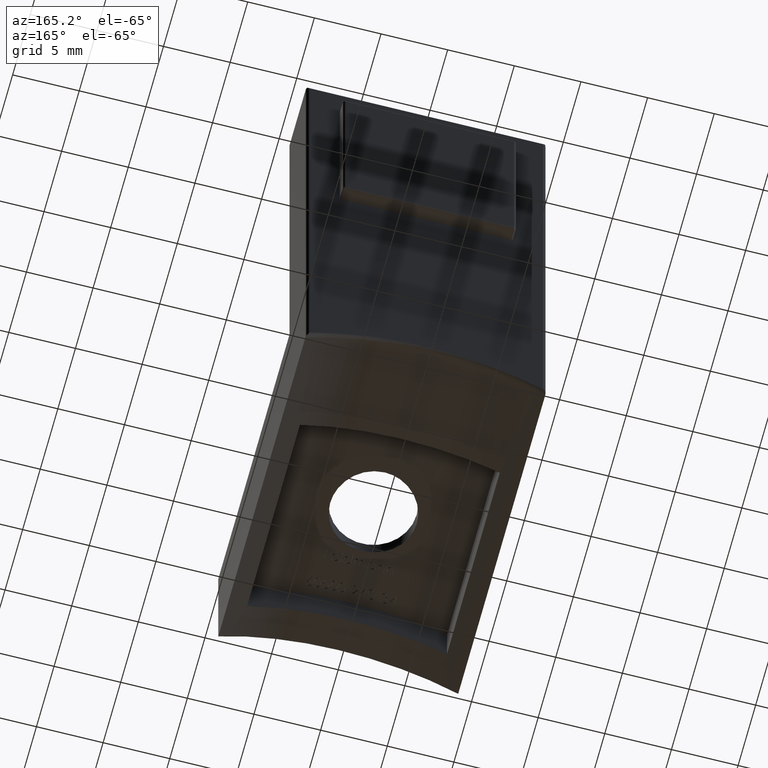
[diagram: clean part render]
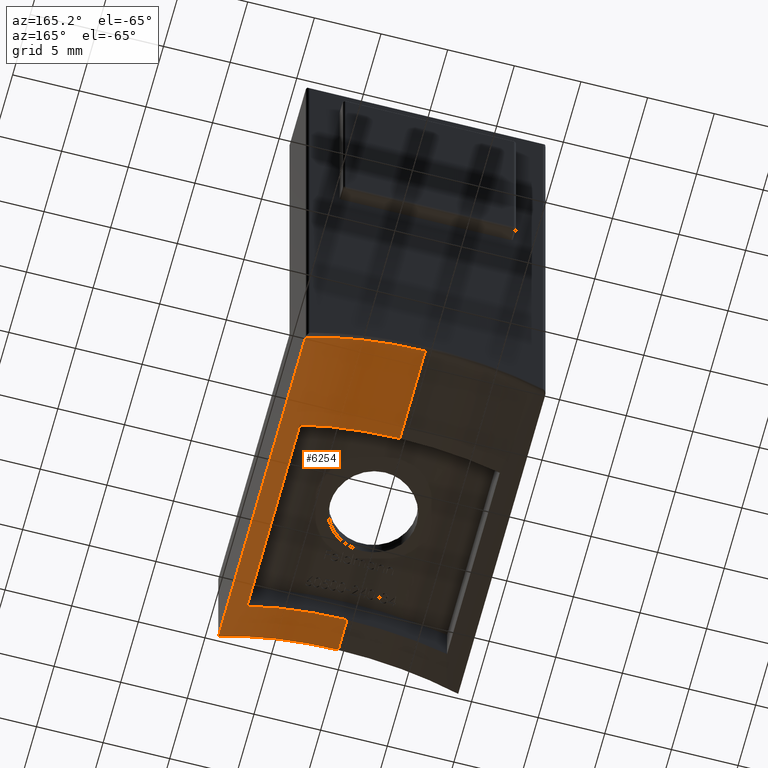
[diagram: same view with one face highlighted and labeled with its STEP entity id]
A machine part, auxiliary view. The second image highlights one B-rep face of the part: STEP entity #6254.
In plain terms, the highlighted cylindrical surface (partial cylindrical patch) has radius 16.85 mm, axis along (-0, 1, -0).
Its self-contained STEP definition (entity closure, byte-faithful):
#178 = VECTOR ( 'NONE', #6816, 1000.000000000000000 ) ;
#493 = CARTESIAN_POINT ( 'NONE',  ( 0.0000000000000000000, -0.2500000000000002200, -16.85000000000000100 ) ) ;
#955 = CARTESIAN_POINT ( 'NONE',  ( 0.0000000000000000000, -25.00000000000000000, 0.0000000000000000000 ) ) ;
#1081 = CARTESIAN_POINT ( 'NONE',  ( 0.0000000000000000000, -25.00000000000000000, -16.85000000000000100 ) ) ;
#1137 = CARTESIAN_POINT ( 'NONE',  ( 9.000000000000000000, -25.00000000000000000, -2.604913127678021300 ) ) ;
#1550 = EDGE_CURVE ( 'NONE', #6033, #10287, #14175, .T. ) ;
#1700 = EDGE_CURVE ( 'NONE', #3410, #6033, #1972, .T. ) ;
#1713 = VERTEX_POINT ( 'NONE', #3495 ) ;
#1807 = VECTOR ( 'NONE', #10134, 1000.000000000000000 ) ;
#1873 = DIRECTION ( 'NONE',  ( 0.0000000000000000000, 0.0000000000000000000, 1.000000000000000000 ) ) ;
#1972 = CIRCLE ( 'NONE', #5917, 16.85000000000000100 ) ;
#1985 = ORIENTED_EDGE ( 'NONE', *, *, #6970, .T. ) ;
#2459 = CARTESIAN_POINT ( 'NONE',  ( 0.0000000000000000000, -7.499999999999996400, -16.85000000000000100 ) ) ;
#2519 = DIRECTION ( 'NONE',  ( 0.0000000000000000000, 0.0000000000000000000, -1.000000000000000000 ) ) ;
#2615 = DIRECTION ( 'NONE',  ( -0.0000000000000000000, 1.000000000000000000, -0.0000000000000000000 ) ) ;
#2791 = EDGE_CURVE ( 'NONE', #6329, #10287, #10075, .T. ) ;
#2797 = ORIENTED_EDGE ( 'NONE', *, *, #2939, .T. ) ;
#2939 = EDGE_CURVE ( 'NONE', #9101, #3410, #12326, .T. ) ;
#3237 = CARTESIAN_POINT ( 'NONE',  ( 0.0000000000000000000, -0.2500000000000002200, 0.0000000000000000000 ) ) ;
#3241 = VERTEX_POINT ( 'NONE', #11389 ) ;
#3410 = VERTEX_POINT ( 'NONE', #9776 ) ;
#3495 = CARTESIAN_POINT ( 'NONE',  ( 9.000000000000000000, -25.00000000000000000, -2.604913127678021300 ) ) ;
#3527 = DIRECTION ( 'NONE',  ( 0.0000000000000000000, 0.0000000000000000000, -1.000000000000000000 ) ) ;
#3555 = EDGE_CURVE ( 'NONE', #9101, #1713, #13920, .T. ) ;
#3716 = CARTESIAN_POINT ( 'NONE',  ( 0.0000000000000000000, -25.00000000000000000, 0.0000000000000000000 ) ) ;
#4170 = AXIS2_PLACEMENT_3D ( 'NONE', #8564, #8603, #1873 ) ;
#4566 = CARTESIAN_POINT ( 'NONE',  ( 7.500000000000003600, -25.00000000000000000, -1.761179635239872800 ) ) ;
#5610 = DIRECTION ( 'NONE',  ( -0.0000000000000000000, 1.000000000000000000, -0.0000000000000000000 ) ) ;
#5917 = AXIS2_PLACEMENT_3D ( 'NONE', #5949, #12776, #2519 ) ;
#5929 = ORIENTED_EDGE ( 'NONE', *, *, #2791, .F. ) ;
#5949 = CARTESIAN_POINT ( 'NONE',  ( 0.0000000000000000000, -22.50000000000000000, -16.85000000000000100 ) ) ;
#6032 = FACE_OUTER_BOUND ( 'NONE', #10170, .T. ) ;
#6033 = VERTEX_POINT ( 'NONE', #10727 ) ;
#6042 = CARTESIAN_POINT ( 'NONE',  ( 0.0000000000000000000, -7.499999999999996400, 0.0000000000000000000 ) ) ;
#6233 = ORIENTED_EDGE ( 'NONE', *, *, #1550, .T. ) ;
#6254 = ADVANCED_FACE ( 'NONE', ( #6032 ), #10797, .F. ) ;
#6329 = VERTEX_POINT ( 'NONE', #6042 ) ;
#6620 = CIRCLE ( 'NONE', #12962, 16.85000000000000100 ) ;
#6816 = DIRECTION ( 'NONE',  ( -0.0000000000000000000, 1.000000000000000000, -0.0000000000000000000 ) ) ;
#6970 = EDGE_CURVE ( 'NONE', #6329, #14091, #10442, .T. ) ;
#7272 = DIRECTION ( 'NONE',  ( -0.0000000000000000000, 1.000000000000000000, -0.0000000000000000000 ) ) ;
#7347 = EDGE_CURVE ( 'NONE', #1713, #3241, #10610, .T. ) ;
#7475 = ORIENTED_EDGE ( 'NONE', *, *, #10822, .T. ) ;
#8029 = VECTOR ( 'NONE', #5610, 1000.000000000000000 ) ;
#8564 = CARTESIAN_POINT ( 'NONE',  ( 0.0000000000000000000, -25.00000000000000000, -16.85000000000000100 ) ) ;
#8603 = DIRECTION ( 'NONE',  ( -0.0000000000000000000, 1.000000000000000000, -0.0000000000000000000 ) ) ;
#8783 = DIRECTION ( 'NONE',  ( 0.0000000000000000000, 1.000000000000000000, 0.0000000000000000000 ) ) ;
#8854 = AXIS2_PLACEMENT_3D ( 'NONE', #2459, #13673, #3527 ) ;
#9005 = ORIENTED_EDGE ( 'NONE', *, *, #3555, .F. ) ;
#9101 = VERTEX_POINT ( 'NONE', #13111 ) ;
#9516 = AXIS2_PLACEMENT_3D ( 'NONE', #1081, #8783, #12223 ) ;
#9757 = ORIENTED_EDGE ( 'NONE', *, *, #7347, .F. ) ;
#9776 = CARTESIAN_POINT ( 'NONE',  ( 0.0000000000000000000, -22.50000000000000000, 0.0000000000000000000 ) ) ;
#10075 = CIRCLE ( 'NONE', #8854, 16.85000000000000100 ) ;
#10134 = DIRECTION ( 'NONE',  ( -0.0000000000000000000, 1.000000000000000000, -0.0000000000000000000 ) ) ;
#10170 = EDGE_LOOP ( 'NONE', ( #9005, #2797, #12449, #6233, #5929, #1985, #7475, #9757 ) ) ;
#10287 = VERTEX_POINT ( 'NONE', #11466 ) ;
#10442 = LINE ( 'NONE', #955, #1807 ) ;
#10610 = LINE ( 'NONE', #1137, #178 ) ;
#10727 = CARTESIAN_POINT ( 'NONE',  ( 7.500000000000003600, -22.50000000000000000, -1.761179635239869200 ) ) ;
#10797 = CYLINDRICAL_SURFACE ( 'NONE', #4170, 16.85000000000000100 ) ;
#10822 = EDGE_CURVE ( 'NONE', #14091, #3241, #6620, .T. ) ;
#11389 = CARTESIAN_POINT ( 'NONE',  ( 9.000000000000000000, -0.2500000000000002200, -2.604913127678021300 ) ) ;
#11466 = CARTESIAN_POINT ( 'NONE',  ( 7.500000000000005300, -7.499999999999996400, -1.761179635239874500 ) ) ;
#11605 = DIRECTION ( 'NONE',  ( 0.0000000000000000000, 0.0000000000000000000, -1.000000000000000000 ) ) ;
#12223 = DIRECTION ( 'NONE',  ( 0.0000000000000000000, 0.0000000000000000000, 1.000000000000000000 ) ) ;
#12326 = LINE ( 'NONE', #3716, #14432 ) ;
#12449 = ORIENTED_EDGE ( 'NONE', *, *, #1700, .T. ) ;
#12776 = DIRECTION ( 'NONE',  ( -0.0000000000000000000, 1.000000000000000000, -0.0000000000000000000 ) ) ;
#12962 = AXIS2_PLACEMENT_3D ( 'NONE', #493, #2615, #11605 ) ;
#13111 = CARTESIAN_POINT ( 'NONE',  ( 0.0000000000000000000, -25.00000000000000000, 0.0000000000000000000 ) ) ;
#13673 = DIRECTION ( 'NONE',  ( -0.0000000000000000000, 1.000000000000000000, -0.0000000000000000000 ) ) ;
#13920 = CIRCLE ( 'NONE', #9516, 16.85000000000000100 ) ;
#14091 = VERTEX_POINT ( 'NONE', #3237 ) ;
#14175 = LINE ( 'NONE', #4566, #8029 ) ;
#14432 = VECTOR ( 'NONE', #7272, 1000.000000000000000 ) ;